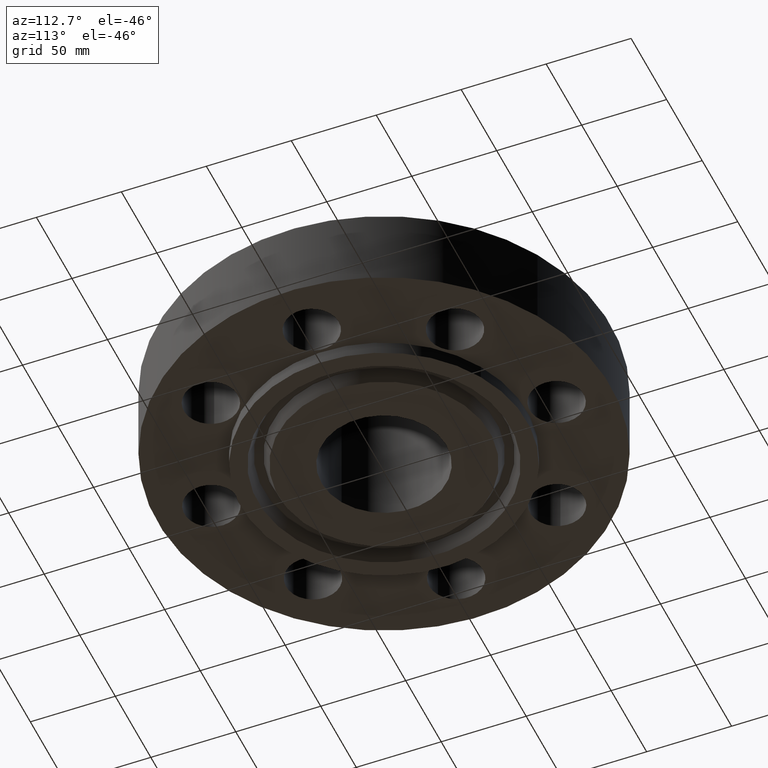
[diagram: clean part render]
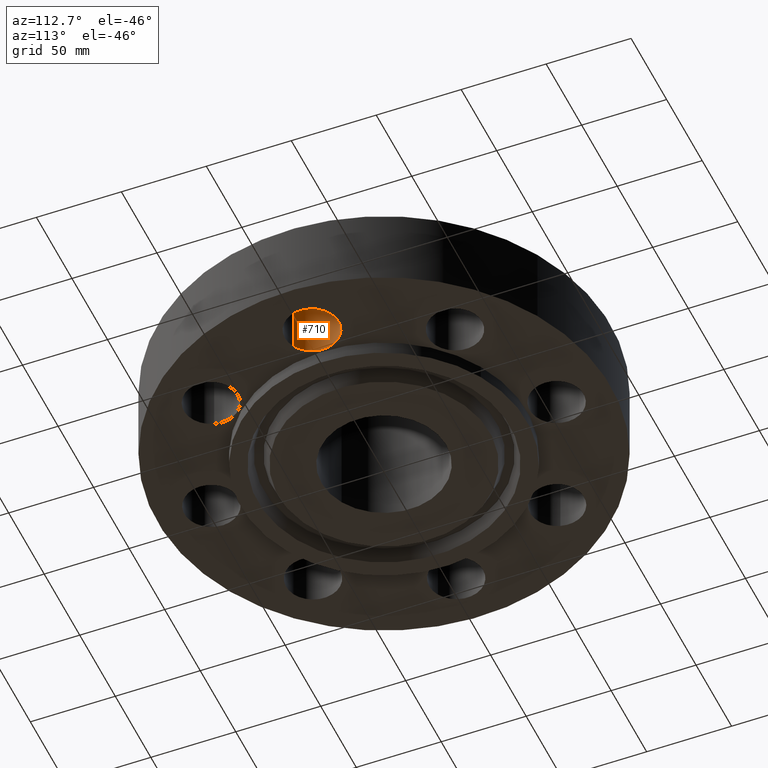
[diagram: same view with one face highlighted and labeled with its STEP entity id]
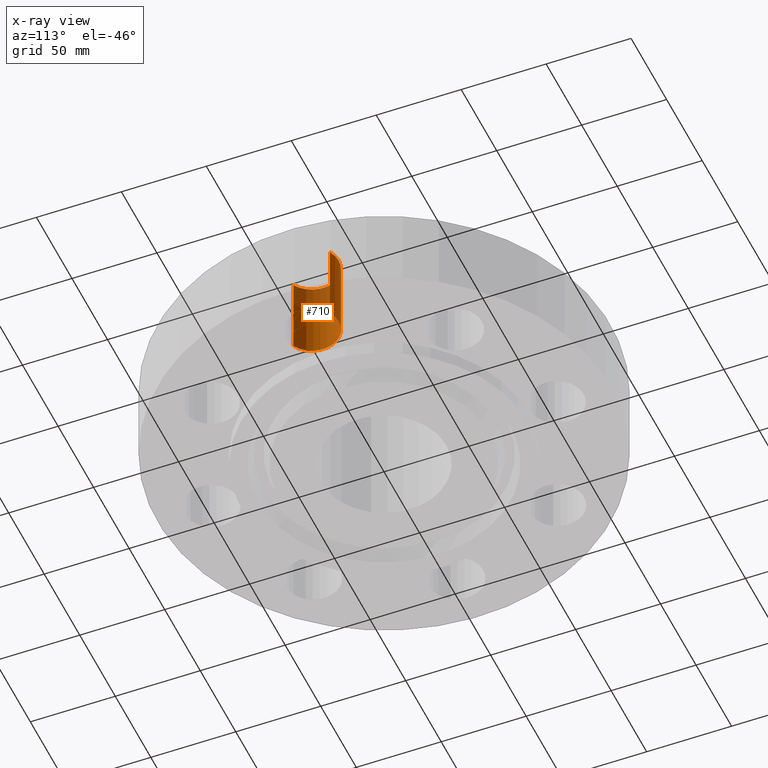
[diagram: x-ray of the same camera — body ghosted, the highlighted face saturated]
A machine part, auxiliary view. The second image highlights one B-rep face of the part: STEP entity #710.
The next image is the same camera in x-ray: the body ghosted, the highlighted face saturated — about 23% of this face is hidden behind the body in this view.
In plain terms, the highlighted cylindrical surface (edge-blend (fillet) strip) has radius 15.875 mm, axis along (0, -0, -1).
Its self-contained STEP definition (entity closure, byte-faithful):
#527=AXIS2_PLACEMENT_3D('Circle Axis2P3D',#525,#526,$) ;
#671=AXIS2_PLACEMENT_3D('Cylinder Axis2P3D',#668,#669,#670) ;
#701=AXIS2_PLACEMENT_3D('Circle Axis2P3D',#699,#700,$) ;
#520=CARTESIAN_POINT('Vertex',(4.29964096164,0.548489101184,0.)) ;
#522=CARTESIAN_POINT('Vertex',(3.70035903839,-0.548489101184,0.)) ;
#525=CARTESIAN_POINT('Axis2P3D Location',(4.00000000002,5.59482469102E-016,0.)) ;
#668=CARTESIAN_POINT('Axis2P3D Location',(4.00000000002,2.4492935983E-016,1.87606299213)) ;
#673=CARTESIAN_POINT('Line Origine',(4.29964096164,0.548489101184,0.940000000004)) ;
#677=CARTESIAN_POINT('Vertex',(4.29964096164,0.548489101184,1.88000000001)) ;
#680=CARTESIAN_POINT('Line Origine',(3.70035903839,-0.548489101184,0.940000000004)) ;
#684=CARTESIAN_POINT('Vertex',(3.70035903839,-0.548489101184,1.88000000001)) ;
#699=CARTESIAN_POINT('Axis2P3D Location',(4.00000000002,2.4492935983E-016,1.88000000001)) ;
#526=DIRECTION('Axis2P3D Direction',(0.,0.,-0.0393700787402)) ;
#669=DIRECTION('Axis2P3D Direction',(0.,-0.,-0.0393700787402)) ;
#670=DIRECTION('Axis2P3D XDirection',(-0.0188750212049,-0.0345504945626,0.)) ;
#674=DIRECTION('Vector Direction',(0.,0.,-0.0393700787402)) ;
#681=DIRECTION('Vector Direction',(0.,0.,-0.0393700787402)) ;
#700=DIRECTION('Axis2P3D Direction',(0.,-0.,-0.0393700787402)) ;
#675=VECTOR('Line Direction',#674,0.0393700787402) ;
#682=VECTOR('Line Direction',#681,0.0393700787402) ;
#705=ORIENTED_EDGE('',*,*,#686,.F.) ;
#706=ORIENTED_EDGE('',*,*,#529,.T.) ;
#707=ORIENTED_EDGE('',*,*,#679,.T.) ;
#708=ORIENTED_EDGE('',*,*,#703,.F.) ;
#710=ADVANCED_FACE('PartBody',(#709),#672,.F.) ;
#528=CIRCLE('generated circle',#527,0.625000000003) ;
#702=CIRCLE('generated circle',#701,0.625000000003) ;
#672=CYLINDRICAL_SURFACE('generated cylinder',#671,0.625000000003) ;
#529=EDGE_CURVE('',#523,#521,#528,.T.) ;
#679=EDGE_CURVE('',#521,#678,#676,.F.) ;
#686=EDGE_CURVE('',#523,#685,#683,.F.) ;
#703=EDGE_CURVE('',#685,#678,#702,.T.) ;
#704=EDGE_LOOP('',(#705,#706,#707,#708)) ;
#709=FACE_OUTER_BOUND('',#704,.T.) ;
#676=LINE('Line',#673,#675) ;
#683=LINE('Line',#680,#682) ;
#521=VERTEX_POINT('',#520) ;
#523=VERTEX_POINT('',#522) ;
#678=VERTEX_POINT('',#677) ;
#685=VERTEX_POINT('',#684) ;